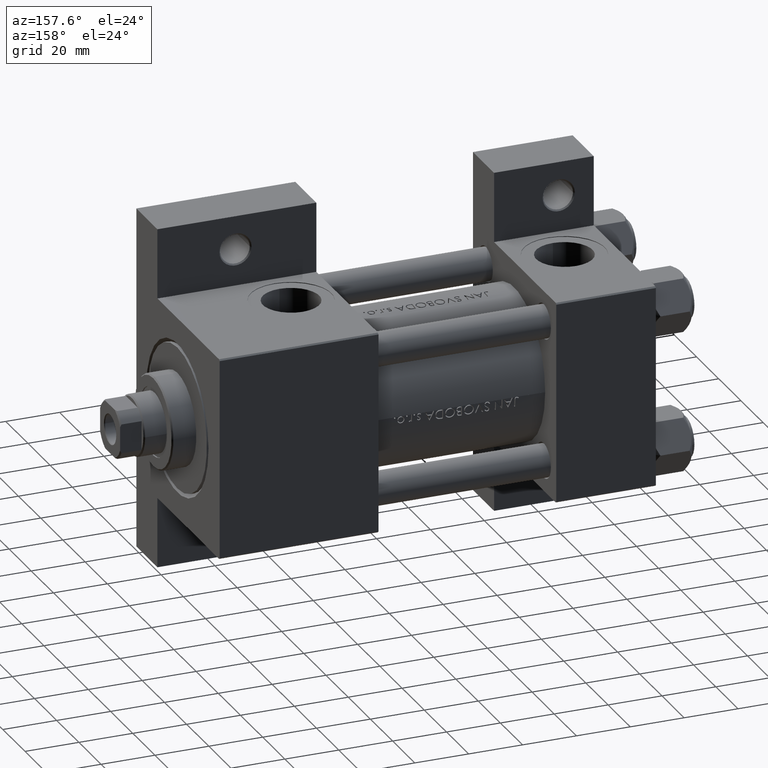
[diagram: clean part render]
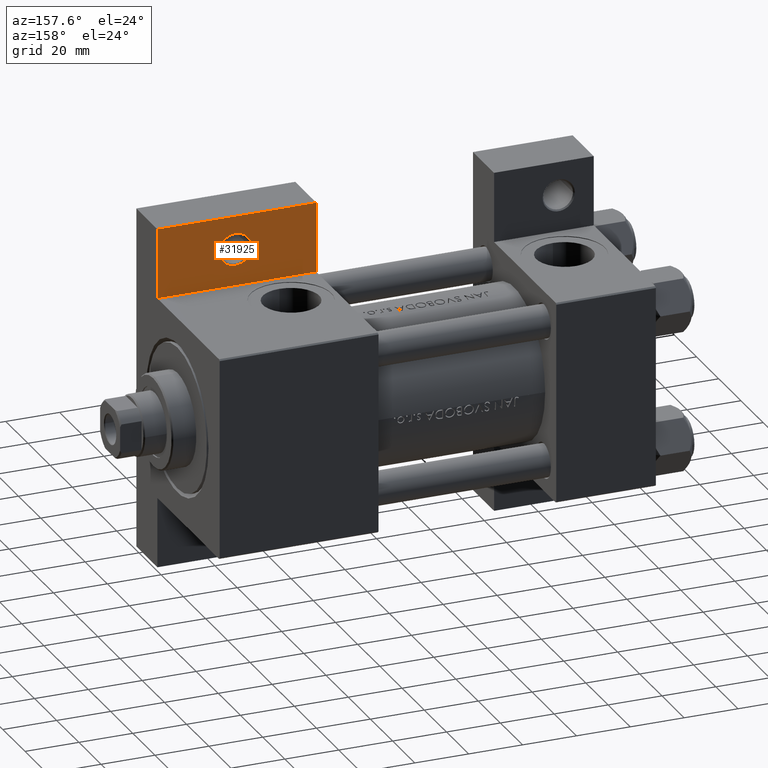
[diagram: same view with one face highlighted and labeled with its STEP entity id]
A machine part, auxiliary view. The second image highlights one B-rep face of the part: STEP entity #31925.
In plain terms, the highlighted planar face has unit normal (0, -1, 0).
Its self-contained STEP definition (entity closure, byte-faithful):
#356 = EDGE_CURVE ( 'NONE', #12053, #7683, #39132, .T. ) ;
#3117 = VERTEX_POINT ( 'NONE', #33384 ) ;
#3307 = LINE ( 'NONE', #29221, #34619 ) ;
#3316 = VECTOR ( 'NONE', #3378, 1000.000000000000000 ) ;
#3378 = DIRECTION ( 'NONE',  ( -0.000000000000000000, -1.000000000000000000, -0.000000000000000000 ) ) ;
#3617 = CARTESIAN_POINT ( 'NONE',  ( 161.9999999999999716, -63.50000000000002842, -18.50000000000000000 ) ) ;
#3906 = VECTOR ( 'NONE', #19404, 1000.000000000000000 ) ;
#4074 = PLANE ( 'NONE',  #34457 ) ;
#5130 = EDGE_CURVE ( 'NONE', #30663, #3117, #3307, .T. ) ;
#6827 = FACE_BOUND ( 'NONE', #22517, .T. ) ;
#7325 = CARTESIAN_POINT ( 'NONE',  ( 0.000000000000000000, 0.000000000000000000, -18.50000000000000000 ) ) ;
#7683 = VERTEX_POINT ( 'NONE', #32304 ) ;
#10196 = DIRECTION ( 'NONE',  ( 0.000000000000000000, 0.000000000000000000, -1.000000000000000000 ) ) ;
#10369 = ORIENTED_EDGE ( 'NONE', *, *, #43721, .F. ) ;
#12053 = VERTEX_POINT ( 'NONE', #27831 ) ;
#13716 = DIRECTION ( 'NONE',  ( -1.000000000000000000, 0.000000000000000000, 0.000000000000000000 ) ) ;
#14846 = DIRECTION ( 'NONE',  ( 5.337610695313252371E-16, 1.000000000000000000, 0.000000000000000000 ) ) ;
#15252 = AXIS2_PLACEMENT_3D ( 'NONE', #17438, #24698, #13716 ) ;
#17218 = EDGE_CURVE ( 'NONE', #41544, #30663, #33800, .T. ) ;
#17438 = CARTESIAN_POINT ( 'NONE',  ( 133.0000000000000000, -50.99999999999999289, -18.50000000000000000 ) ) ;
#19404 = DIRECTION ( 'NONE',  ( -1.000000000000000000, 4.704334850106596780E-16, -0.000000000000000000 ) ) ;
#21048 = EDGE_CURVE ( 'NONE', #7683, #12053, #37401, .T. ) ;
#22517 = EDGE_LOOP ( 'NONE', ( #34837, #42397 ) ) ;
#22757 = DIRECTION ( 'NONE',  ( 0.000000000000000000, 0.000000000000000000, -1.000000000000000000 ) ) ;
#23956 = EDGE_CURVE ( 'NONE', #3117, #32019, #45212, .T. ) ;
#24698 = DIRECTION ( 'NONE',  ( 0.000000000000000000, 0.000000000000000000, -1.000000000000000000 ) ) ;
#25465 = EDGE_LOOP ( 'NONE', ( #30230, #36474, #43978, #10369 ) ) ;
#27831 = CARTESIAN_POINT ( 'NONE',  ( 138.9995000000000118, -50.99999999999999289, -18.50000000000000000 ) ) ;
#29221 = CARTESIAN_POINT ( 'NONE',  ( 103.0000000000000142, -37.50000000000000000, -18.50000000000000000 ) ) ;
#29398 = DIRECTION ( 'NONE',  ( -1.000000000000000000, 0.000000000000000000, 0.000000000000000000 ) ) ;
#30001 = CARTESIAN_POINT ( 'NONE',  ( 161.9999999999999716, -63.50000000000002842, -18.50000000000000000 ) ) ;
#30230 = ORIENTED_EDGE ( 'NONE', *, *, #23956, .F. ) ;
#30663 = VERTEX_POINT ( 'NONE', #35305 ) ;
#31690 = VECTOR ( 'NONE', #14846, 1000.000000000000000 ) ;
#31925 = ADVANCED_FACE ( 'NONE', ( #6827, #48419 ), #4074, .F. ) ;
#32019 = VERTEX_POINT ( 'NONE', #30001 ) ;
#32304 = CARTESIAN_POINT ( 'NONE',  ( 127.0004999999999882, -50.99999999999999289, -18.50000000000000000 ) ) ;
#33384 = CARTESIAN_POINT ( 'NONE',  ( 162.0000000000000000, -37.50000000000000711, -18.50000000000000355 ) ) ;
#33800 = LINE ( 'NONE', #48966, #31690 ) ;
#34457 = AXIS2_PLACEMENT_3D ( 'NONE', #7325, #22757, #49157 ) ;
#34619 = VECTOR ( 'NONE', #40158, 1000.000000000000000 ) ;
#34837 = ORIENTED_EDGE ( 'NONE', *, *, #356, .T. ) ;
#35305 = CARTESIAN_POINT ( 'NONE',  ( 103.0000000000000142, -37.50000000000000000, -18.50000000000000000 ) ) ;
#36474 = ORIENTED_EDGE ( 'NONE', *, *, #5130, .F. ) ;
#37401 = CIRCLE ( 'NONE', #43742, 5.999500000000018929 ) ;
#38585 = LINE ( 'NONE', #46066, #3906 ) ;
#39132 = CIRCLE ( 'NONE', #15252, 5.999500000000018929 ) ;
#40158 = DIRECTION ( 'NONE',  ( 1.000000000000000000, -1.176083712526649442E-16, 0.000000000000000000 ) ) ;
#41544 = VERTEX_POINT ( 'NONE', #45131 ) ;
#42397 = ORIENTED_EDGE ( 'NONE', *, *, #21048, .T. ) ;
#43721 = EDGE_CURVE ( 'NONE', #32019, #41544, #38585, .T. ) ;
#43742 = AXIS2_PLACEMENT_3D ( 'NONE', #44315, #10196, #29398 ) ;
#43978 = ORIENTED_EDGE ( 'NONE', *, *, #17218, .F. ) ;
#44315 = CARTESIAN_POINT ( 'NONE',  ( 133.0000000000000000, -50.99999999999999289, -18.50000000000000000 ) ) ;
#45131 = CARTESIAN_POINT ( 'NONE',  ( 103.0000000000000000, -63.50000000000000000, -18.50000000000000000 ) ) ;
#45212 = LINE ( 'NONE', #3617, #3316 ) ;
#46066 = CARTESIAN_POINT ( 'NONE',  ( 103.0000000000000000, -63.50000000000000000, -18.50000000000000000 ) ) ;
#48419 = FACE_OUTER_BOUND ( 'NONE', #25465, .T. ) ;
#48966 = CARTESIAN_POINT ( 'NONE',  ( 103.0000000000000000, -63.50000000000000000, -18.50000000000000000 ) ) ;
#49157 = DIRECTION ( 'NONE',  ( -1.000000000000000000, 0.000000000000000000, -0.000000000000000000 ) ) ;